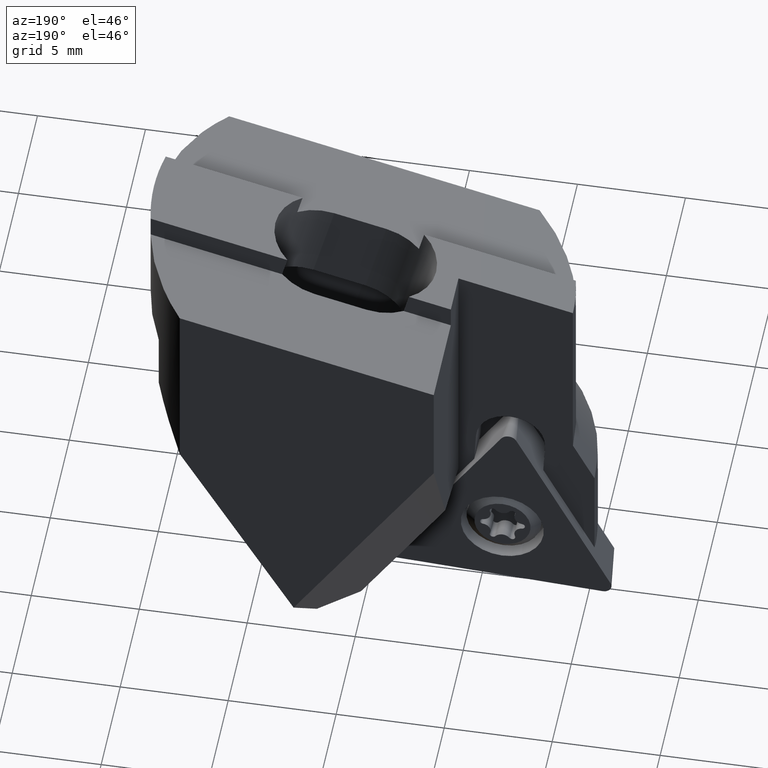
[diagram: clean part render]
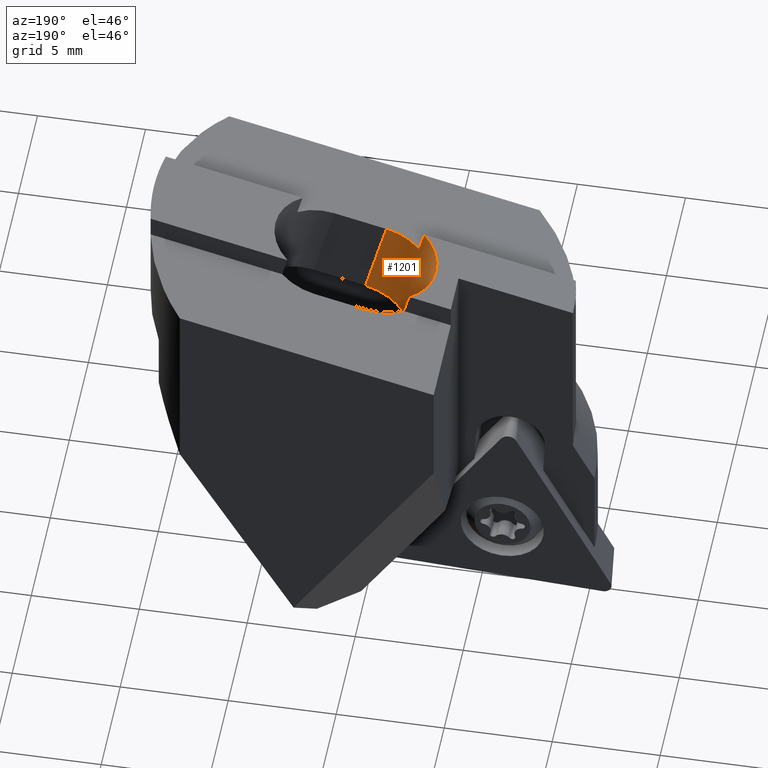
[diagram: same view with one face highlighted and labeled with its STEP entity id]
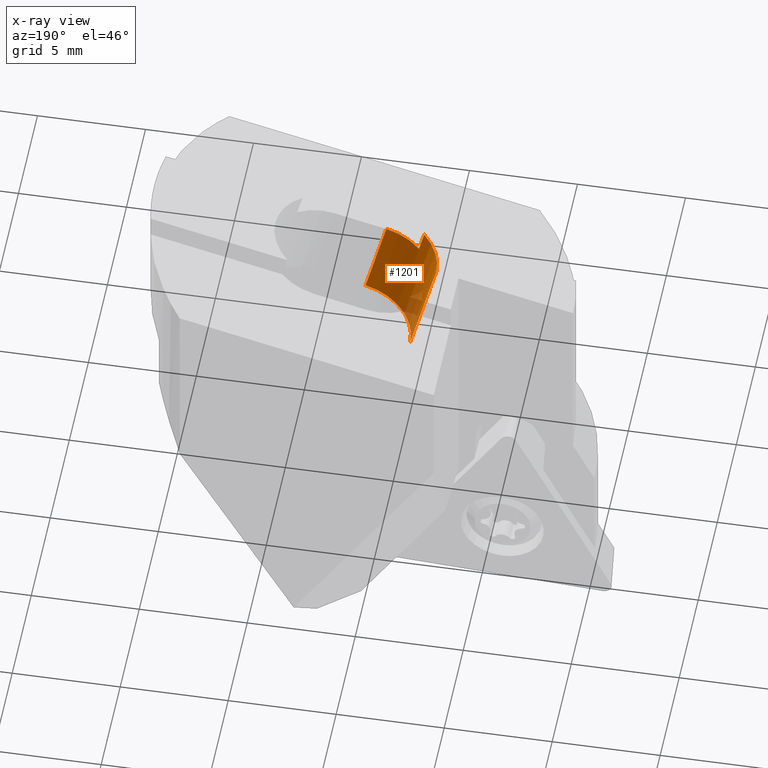
[diagram: x-ray of the same camera — body ghosted, the highlighted face saturated]
A machine part, auxiliary view. The second image highlights one B-rep face of the part: STEP entity #1201.
The next image is the same camera in x-ray: the body ghosted, the highlighted face saturated — about 11% of this face is hidden behind the body in this view.
In plain terms, the highlighted cylindrical surface (partial cylindrical patch) has radius 2.6 mm, axis along (-0.2419, -0, 0.9703).
Its self-contained STEP definition (entity closure, byte-faithful):
#629=VERTEX_POINT('',#1737);
#695=EDGE_CURVE('NONE',#761,#909,#1810,.T.);
#761=VERTEX_POINT('NONE',#1882);
#797=VERTEX_POINT('',#1925);
#855=EDGE_CURVE('NONE',#1035,#1537,#1988,.F.);
#909=VERTEX_POINT('NONE',#2049);
#989=EDGE_CURVE('',#629,#797,#2140,.T.);
#1035=VERTEX_POINT('NONE',#2192);
#1139=EDGE_CURVE('NONE',#797,#909,#2304,.F.);
#1201=ADVANCED_FACE('NONE',(#2373),#2374,.F.);
#1505=EDGE_CURVE('NONE',#761,#1537,#2706,.T.);
#1537=VERTEX_POINT('NONE',#2740);
#1599=EDGE_CURVE('NONE',#1035,#629,#2808,.T.);
#1737=CARTESIAN_POINT('',(-1.6602739549394,-2.2586316141458E-016,-8.11016656510742));
#1810=LINE('',#3076,#3077);
#1882=CARTESIAN_POINT('',(-1.71716897581477,-2.0,-4.00189756963442));
#1925=CARTESIAN_POINT('',(-2.8698834329377,-2.2586316141458E-016,-3.25868793372743));
#1988=LINE('',#3309,#3310);
#2049=CARTESIAN_POINT('',(-1.95909087141443,-2.0,-3.03160184335842));
#2140=LINE('',#3512,#3513);
#2192=CARTESIAN_POINT('',(0.862494933378201,-2.6,-7.48116963654831));
#2304=CIRCLE('',#4121,2.6);
#2373=FACE_OUTER_BOUND('',#4215,.T.);
#2374=CYLINDRICAL_SURFACE('',#4216,2.6);
#2706=CIRCLE('',#4672,2.6);
#2740=CARTESIAN_POINT('',(-0.105192649020441,-2.6,-3.59998673144431));
#2808=CIRCLE('',#4822,2.6);
#3076=CARTESIAN_POINT('',(3.13440271500161,-2.0,-23.4604888048436));
#3077=VECTOR('',#5051,1.0);
#3309=CARTESIAN_POINT('',(4.74637904179594,-2.6,-23.0585779666535));
#3310=VECTOR('',#5293,1.0);
#3512=CARTESIAN_POINT('',(-2.21790726661212,-2.2586316141458E-016,-5.87362151074591));
#3513=VECTOR('',#5527,1.0);
#4121=AXIS2_PLACEMENT_3D('',#5711,#5712,#5713);
#4215=EDGE_LOOP('',(#5812,#5813,#5814,#5815,#5816,#5817));
#4216=AXIS2_PLACEMENT_3D('',#5818,#5819,#5820);
#4672=AXIS2_PLACEMENT_3D('',#6193,#6194,#6195);
#4822=AXIS2_PLACEMENT_3D('',#6304,#6305,#6306);
#5051=DIRECTION('',(-0.241921895599661,0.0,0.970295726275998));
#5293=DIRECTION('',(0.241921895599661,0.0,-0.970295726275998));
#5527=DIRECTION('',(-0.241921895599661,-0.0,0.970295726275998));
#5711=CARTESIAN_POINT('',(-0.347114544620103,9.25344905792385E-017,-2.62969100516831));
#5712=DIRECTION('',(0.241921895599661,0.0,-0.970295726275998));
#5713=DIRECTION('',(0.970295726275998,0.0,0.241921895599661));
#5812=ORIENTED_EDGE('',*,*,#989,.T.);
#5813=ORIENTED_EDGE('',*,*,#1139,.T.);
#5814=ORIENTED_EDGE('',*,*,#695,.F.);
#5815=ORIENTED_EDGE('',*,*,#1505,.T.);
#5816=ORIENTED_EDGE('',*,*,#855,.F.);
#5817=ORIENTED_EDGE('',*,*,#1599,.T.);
#5818=CARTESIAN_POINT('',(4.74637904179594,9.25344905792385E-017,-23.0585779666535));
#5819=DIRECTION('',(-0.241921895599661,-0.0,0.970295726275998));
#5820=DIRECTION('',(0.970295726275998,0.0,0.241921895599661));
#6193=CARTESIAN_POINT('',(-0.105192649020442,9.25344905792385E-017,-3.59998673144431));
#6194=DIRECTION('',(-0.241921895599661,0.0,0.970295726275998));
#6195=DIRECTION('',(0.970295726275998,0.0,0.241921895599661));
#6304=CARTESIAN_POINT('',(0.862494933378201,9.25344905792385E-017,-7.48116963654831));
#6305=DIRECTION('',(0.241921895599661,0.0,-0.970295726275998));
#6306=DIRECTION('',(0.970295726275998,0.0,0.241921895599661));